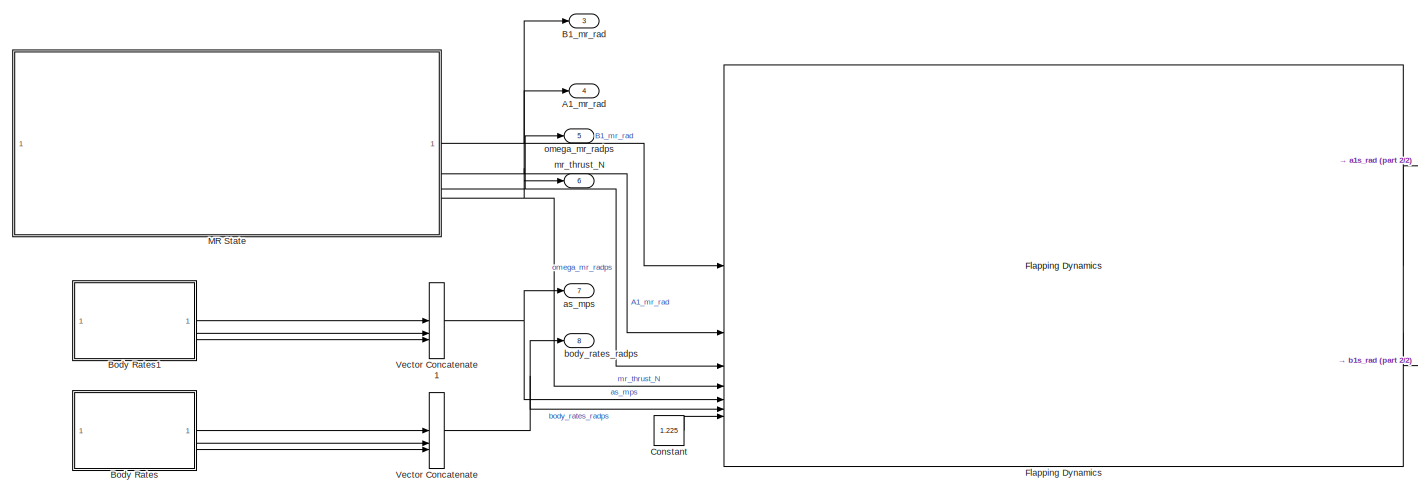
[diagram: root canvas - part 1/2, most of the canvas]
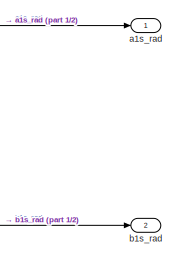
[diagram: root canvas - part 2/2, middle right region]
MODEL slx_4e657c9fac33
KIND model
CONFIG AbsTol = auto
CONFIG EnableMultiTasking = off
CONFIG FixedStep = plant_sample_time_s
CONFIG MaxStep = auto
CONFIG MinStep = auto
CONFIG RelTol = 1e-3
CONFIG SampleTimeConstraint = Unconstrained
CONFIG SolverName = ode4
CONFIG StartTime = 0.0
CONFIG StopTime = 50
BLOCK [Outport] A1_mr_rad
  Port = 4
BLOCK [Outport] B1_mr_rad
  Port = 3
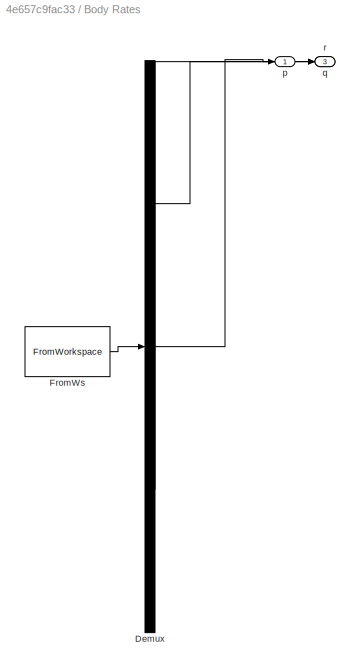
BLOCK [SubSystem] Body Rates
  ClipboardFcn = sigbuilder_block('clipboard');
  CloseFcn = sigbuilder_block('close');
  ContinueFcn = sigbuilder_block('continue');
  CopyFcn = sigbuilder_block('copy');
  DeleteFcn = sigbuilder_block('delete');
  LoadFcn = sigbuilder_block('load');
  MaskHideContents = on
  ModelCloseFcn = sigbuilder_block('modelClose');
  NameChangeFcn = sigbuilder_block('namechange');
  OpenFcn = sigbuilder_block('open',[437.6 199.2 550.4 400 ]);
  PauseFcn = sigbuilder_block('pause');
  PreSaveFcn = sigbuilder_block('preSave');
  StartFcn = sigbuilder_block('start');
  StopFcn = sigbuilder_block('stop');
  Tag = STV Subsys
BLOCK [Demux] Body Rates/Demux
  DisplayOption = none
  Outputs = 3
  Tag = STV Demux
BLOCK [FromWorkspace] Body Rates/FromWs
  Tag = STV FromWs
  VariableName = tuvar
BLOCK [Outport] Body Rates/p
  Tag = STV Outport
BLOCK [Outport] Body Rates/q
  Port = 2
  Tag = STV Outport
BLOCK [Outport] Body Rates/r
  Port = 3
  Tag = STV Outport
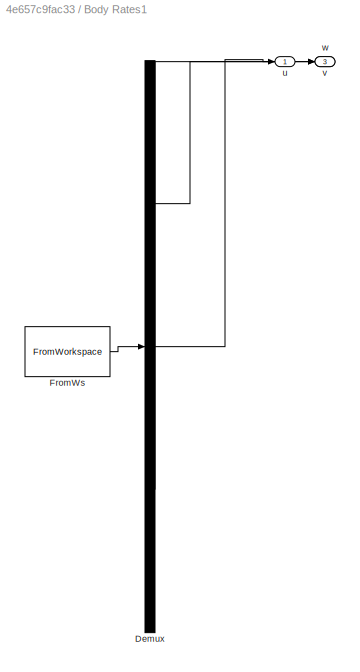
BLOCK [SubSystem] Body Rates1
  ClipboardFcn = sigbuilder_block('clipboard');
  CloseFcn = sigbuilder_block('close');
  ContinueFcn = sigbuilder_block('continue');
  CopyFcn = sigbuilder_block('copy');
  DeleteFcn = sigbuilder_block('delete');
  LoadFcn = sigbuilder_block('load');
  MaskHideContents = on
  ModelCloseFcn = sigbuilder_block('modelClose');
  NameChangeFcn = sigbuilder_block('namechange');
  OpenFcn = sigbuilder_block('open',[437.6 199.2 550.4 400 ]);
  PauseFcn = sigbuilder_block('pause');
  PreSaveFcn = sigbuilder_block('preSave');
  StartFcn = sigbuilder_block('start');
  StopFcn = sigbuilder_block('stop');
  Tag = STV Subsys
BLOCK [Demux] Body Rates1/Demux
  DisplayOption = none
  Outputs = 3
  Tag = STV Demux
BLOCK [FromWorkspace] Body Rates1/FromWs
  Tag = STV FromWs
  VariableName = tuvar
BLOCK [Outport] Body Rates1/u
  Tag = STV Outport
BLOCK [Outport] Body Rates1/v
  Port = 2
  Tag = STV Outport
BLOCK [Outport] Body Rates1/w
  Port = 3
  Tag = STV Outport
BLOCK [Constant] Constant
  SampleTime = plant_sample_time_s
  Value = 1.225
BLOCK [Reference] Flapping Dynamics  REF=flapping_dynamics/Flapping Dynamics  (lib defined in slx_0f8428bc6f82)
  SourceBlock = flapping_dynamics/Flapping Dynamics
  SourceType = SubSystem
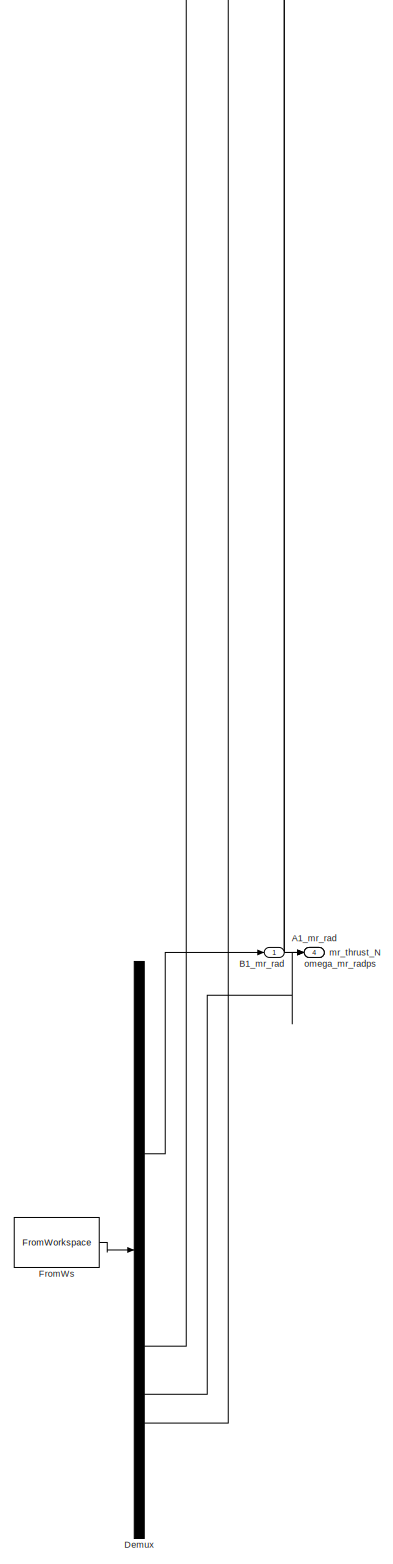
[diagram: MR State - part 1/1, full width, bottom band]
BLOCK [SubSystem] MR State
  ClipboardFcn = sigbuilder_block('clipboard');
  CloseFcn = sigbuilder_block('close');
  ContinueFcn = sigbuilder_block('continue');
  CopyFcn = sigbuilder_block('copy');
  DeleteFcn = sigbuilder_block('delete');
  LoadFcn = sigbuilder_block('load');
  MaskHideContents = on
  ModelCloseFcn = sigbuilder_block('modelClose');
  NameChangeFcn = sigbuilder_block('namechange');
  OpenFcn = sigbuilder_block('open',[123 165.6 550.8 400.2 ]);
  PauseFcn = sigbuilder_block('pause');
  PreSaveFcn = sigbuilder_block('preSave');
  StartFcn = sigbuilder_block('start');
  StopFcn = sigbuilder_block('stop');
  Tag = STV Subsys
BLOCK [Outport] MR State/A1_mr_rad
  Port = 2
  Tag = STV Outport
BLOCK [Outport] MR State/B1_mr_rad
  Tag = STV Outport
BLOCK [Demux] MR State/Demux
  DisplayOption = none
  Tag = STV Demux
BLOCK [FromWorkspace] MR State/FromWs
  Tag = STV FromWs
  VariableName = tuvar
BLOCK [Outport] MR State/mr_thrust_N
  Port = 4
  Tag = STV Outport
BLOCK [Outport] MR State/omega_mr_radps
  Port = 3
  Tag = STV Outport
BLOCK [Concatenate] Vector Concatenate
  NumInputs = 3
BLOCK [Concatenate] Vector Concatenate1
  NumInputs = 3
BLOCK [Outport] a1s_rad
BLOCK [Outport] as_mps
  Port = 7
BLOCK [Outport] b1s_rad
  Port = 2
BLOCK [Outport] body_rates_radps
  Port = 8
BLOCK [Outport] mr_thrust_N
  Port = 6
BLOCK [Outport] omega_mr_radps
  Port = 5
LINE Body Rates1:1 -> Vector Concatenate1:1
LINE Body Rates1:2 -> Vector Concatenate1:2
LINE Body Rates1:3 -> Vector Concatenate1:3
LINE Body Rates:1 -> Vector Concatenate:1
LINE Body Rates:2 -> Vector Concatenate:2
LINE Body Rates:3 -> Vector Concatenate:3
LINE Constant:1 -> Flapping Dynamics:7
LINE Flapping Dynamics:1 -> a1s_rad:1
LINE Flapping Dynamics:2 -> b1s_rad:1
NET MR State:1 -> B1_mr_rad:1, Flapping Dynamics:1
NET MR State:2 -> A1_mr_rad:1, Flapping Dynamics:2
NET MR State:3 -> Flapping Dynamics:3, omega_mr_radps:1
NET MR State:4 -> Flapping Dynamics:4, mr_thrust_N:1
NET Vector Concatenate1:1 -> Flapping Dynamics:5, as_mps:1
NET Vector Concatenate:1 -> Flapping Dynamics:6, body_rates_radps:1
note: NET lines group one-source signal fan-out (src -> all destinations, sorted); 1:1 wires keep LINE
